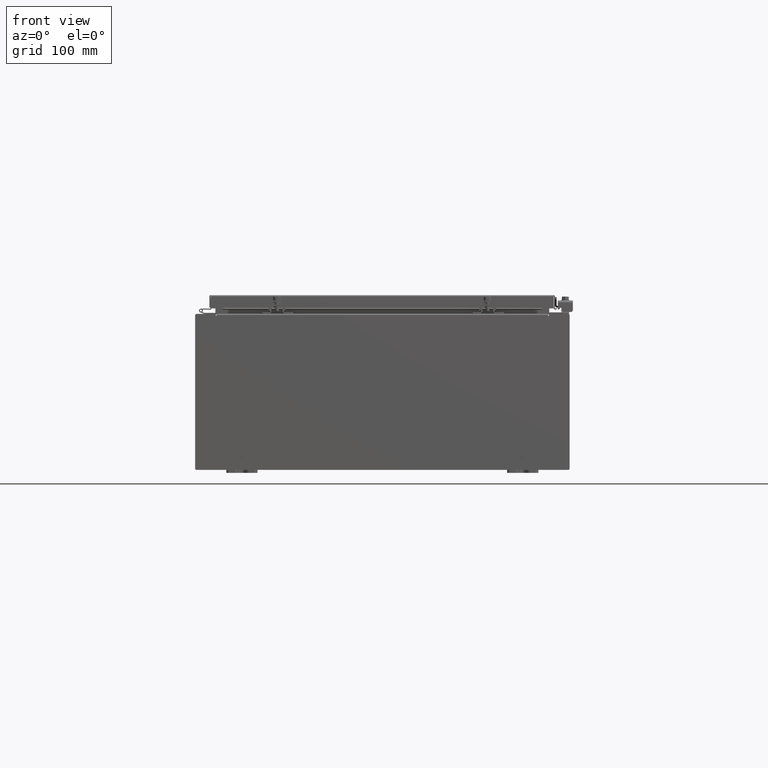
[diagram: clean part render]
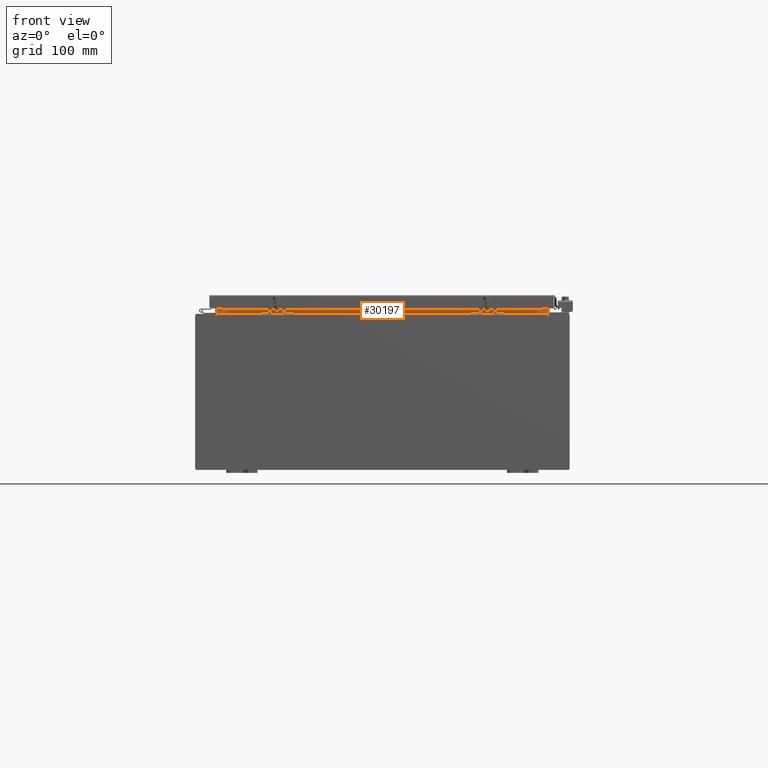
[diagram: same view with one face highlighted and labeled with its STEP entity id]
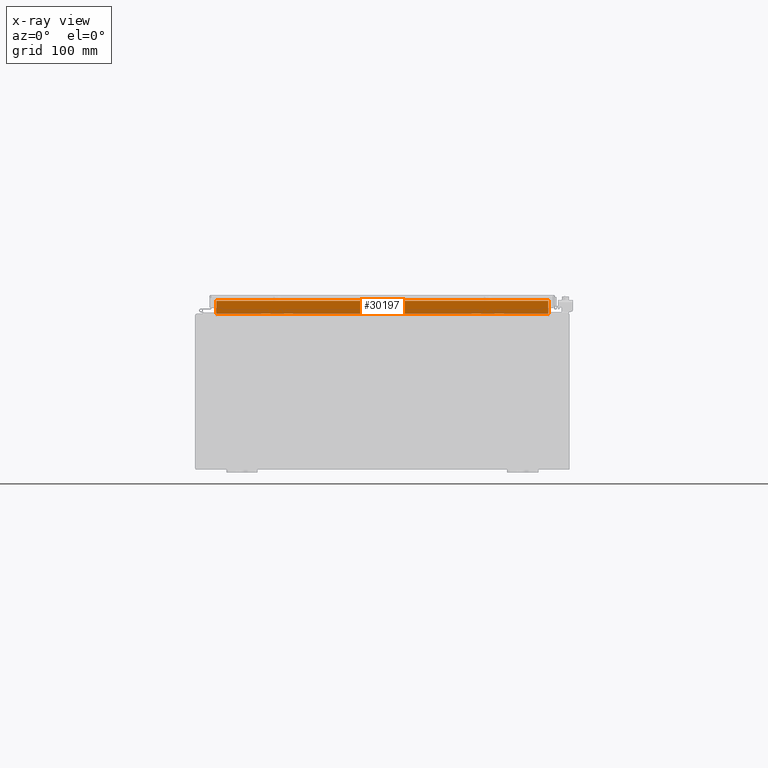
[diagram: x-ray of the same camera — body ghosted, the highlighted face saturated]
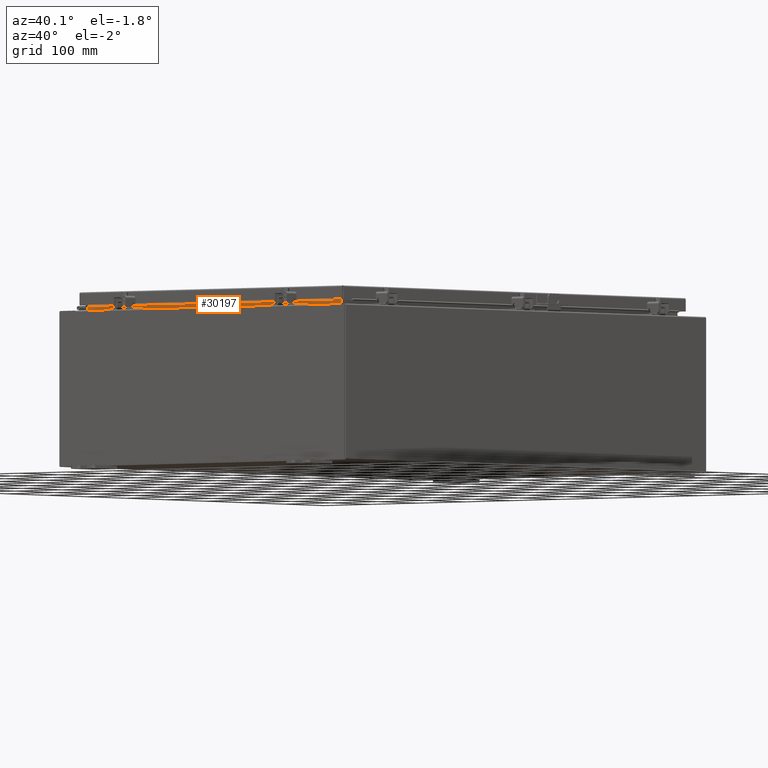
[diagram: same view with one face highlighted and labeled with its STEP entity id]
A machine part, front view. The second image highlights one B-rep face of the part: STEP entity #30197.
The next image is the same camera in x-ray: the body ghosted, the highlighted face saturated — about 0% of this face is hidden behind the body in this view.
A second angle (auxiliary view) of the same face is appended — the face is thin or edge-on in the first view.
In plain terms, the highlighted planar face has unit normal (0, -1, 0).
Its self-contained STEP definition (entity closure, byte-faithful):
#186 = AXIS2_PLACEMENT_3D ( 'NONE', #18356, #21652, #2092 ) ;
#811 = DIRECTION ( 'NONE',  ( 1.000000000000000000, 0.0000000000000000000, 0.0000000000000000000 ) ) ;
#1864 = CARTESIAN_POINT ( 'NONE',  ( -10.63720000000000200, -1.300299999999999800, 5.000000000000004400 ) ) ;
#2092 = DIRECTION ( 'NONE',  ( 0.0000000000000000000, -0.0000000000000000000, 1.000000000000000000 ) ) ;
#3905 = EDGE_CURVE ( 'NONE', #5612, #14050, #34104, .T. ) ;
#4034 = ORIENTED_EDGE ( 'NONE', *, *, #3905, .F. ) ;
#5133 = DIRECTION ( 'NONE',  ( -0.0000000000000000000, -0.0000000000000000000, -1.000000000000000000 ) ) ;
#5612 = VERTEX_POINT ( 'NONE', #38324 ) ;
#7202 = CARTESIAN_POINT ( 'NONE',  ( -10.63720000000000400, -1.300299999999999800, 5.013000000000003500 ) ) ;
#8602 = DIRECTION ( 'NONE',  ( -1.000000000000000000, -0.0000000000000000000, -0.0000000000000000000 ) ) ;
#11755 = VECTOR ( 'NONE', #811, 39.37007874015748100 ) ;
#14050 = VERTEX_POINT ( 'NONE', #27227 ) ;
#15075 = PLANE ( 'NONE',  #186 ) ;
#16095 = LINE ( 'NONE', #1864, #24742 ) ;
#17167 = CARTESIAN_POINT ( 'NONE',  ( -10.63720000000000200, -1.300299999999999800, 5.013000000000003500 ) ) ;
#18099 = EDGE_LOOP ( 'NONE', ( #26686, #24740, #4034, #29261 ) ) ;
#18356 = CARTESIAN_POINT ( 'NONE',  ( 0.0000000000000000000, -1.300299999999999800, 0.0000000000000000000 ) ) ;
#21652 = DIRECTION ( 'NONE',  ( 0.0000000000000000000, 1.000000000000000000, 0.0000000000000000000 ) ) ;
#24740 = ORIENTED_EDGE ( 'NONE', *, *, #30827, .F. ) ;
#24742 = VECTOR ( 'NONE', #5133, 39.37007874015748100 ) ;
#25419 = VECTOR ( 'NONE', #40925, 39.37007874015748100 ) ;
#26686 = ORIENTED_EDGE ( 'NONE', *, *, #37414, .F. ) ;
#27227 = CARTESIAN_POINT ( 'NONE',  ( 10.63720000000000200, -1.300299999999999800, 5.837600000000004600 ) ) ;
#27927 = FACE_OUTER_BOUND ( 'NONE', #18099, .T. ) ;
#28172 = CARTESIAN_POINT ( 'NONE',  ( 10.63720000000000200, -1.300299999999999800, 5.837600000000004600 ) ) ;
#29130 = LINE ( 'NONE', #17167, #11755 ) ;
#29261 = ORIENTED_EDGE ( 'NONE', *, *, #40433, .F. ) ;
#30197 = ADVANCED_FACE ( 'NONE', ( #27927 ), #15075, .T. ) ;
#30827 = EDGE_CURVE ( 'NONE', #14050, #34029, #32489, .T. ) ;
#31451 = VECTOR ( 'NONE', #8602, 39.37007874015748100 ) ;
#32489 = LINE ( 'NONE', #28172, #31451 ) ;
#34029 = VERTEX_POINT ( 'NONE', #36901 ) ;
#34104 = LINE ( 'NONE', #41492, #25419 ) ;
#36901 = CARTESIAN_POINT ( 'NONE',  ( -10.63720000000000200, -1.300299999999999800, 5.837600000000004600 ) ) ;
#37414 = EDGE_CURVE ( 'NONE', #34029, #40400, #16095, .T. ) ;
#38324 = CARTESIAN_POINT ( 'NONE',  ( 10.63720000000000400, -1.300299999999999800, 5.013000000000003500 ) ) ;
#40400 = VERTEX_POINT ( 'NONE', #7202 ) ;
#40433 = EDGE_CURVE ( 'NONE', #40400, #5612, #29130, .T. ) ;
#40925 = DIRECTION ( 'NONE',  ( -0.0000000000000000000, -0.0000000000000000000, 1.000000000000000000 ) ) ;
#41492 = CARTESIAN_POINT ( 'NONE',  ( 10.63720000000000200, -1.300299999999999800, 5.925300000000004500 ) ) ;